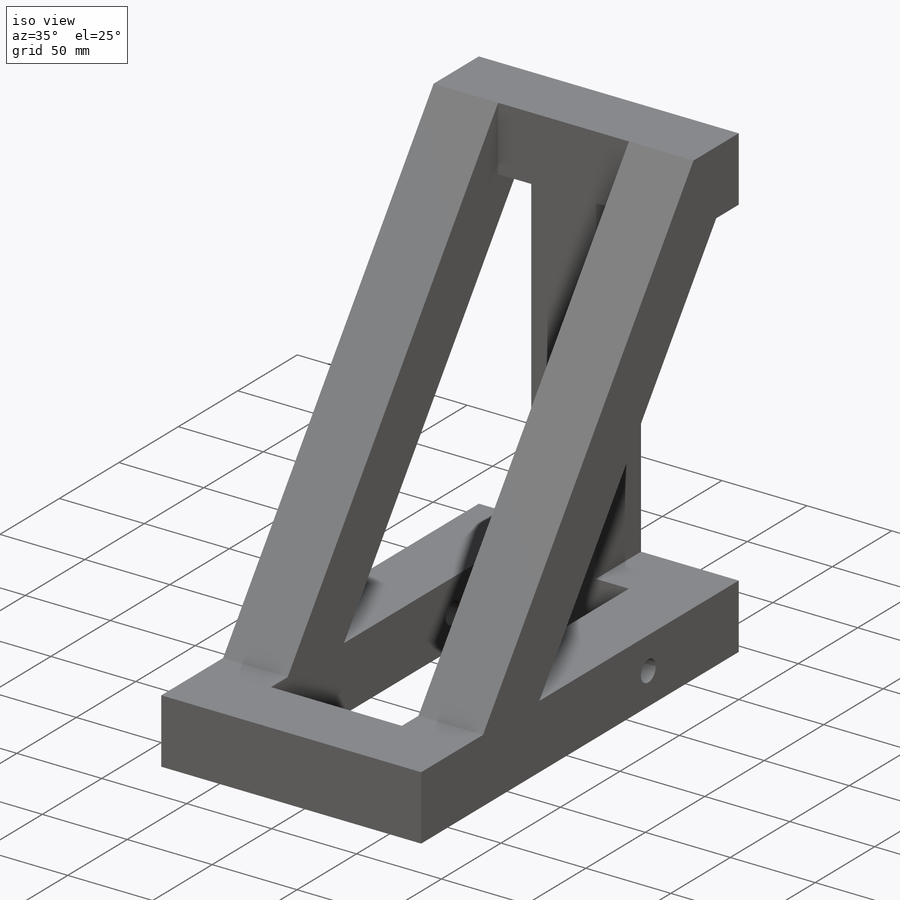
[diagram: iso view]
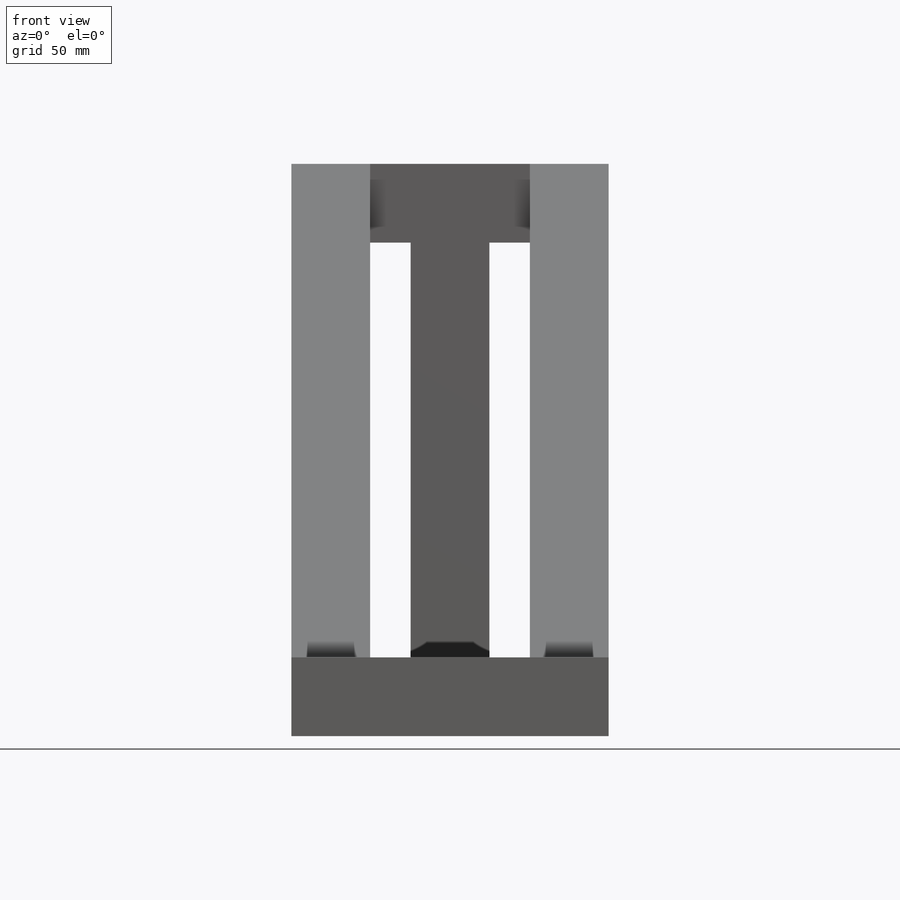
[diagram: front view]
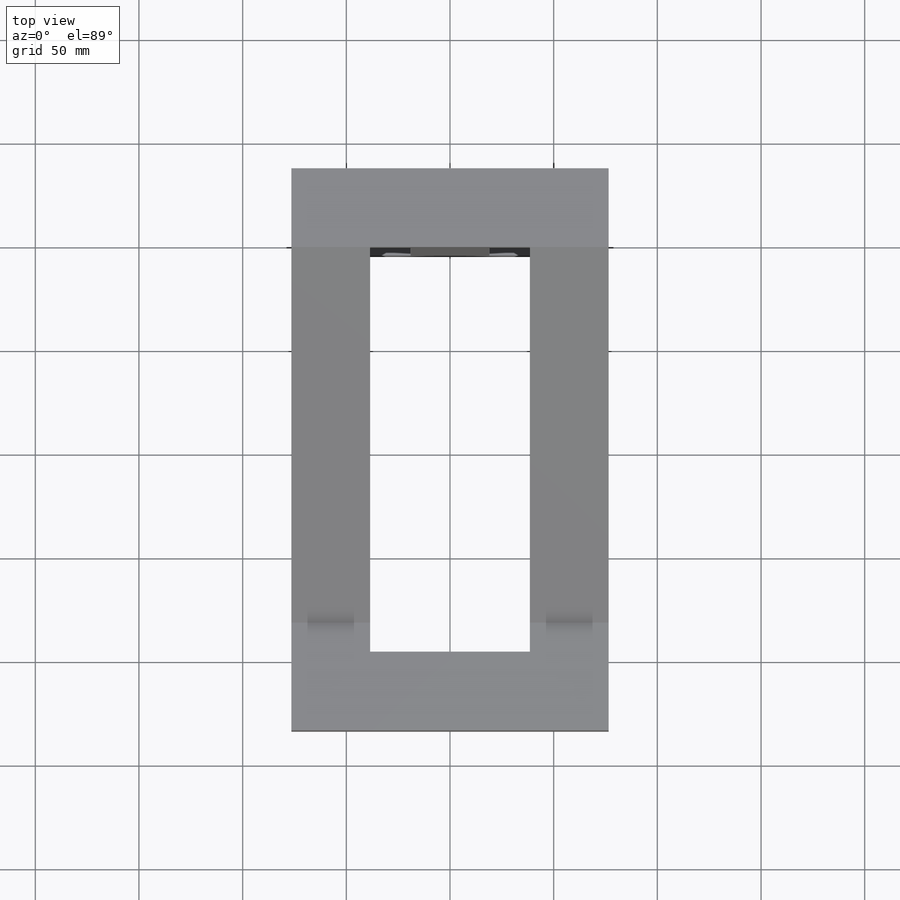
[diagram: top view]
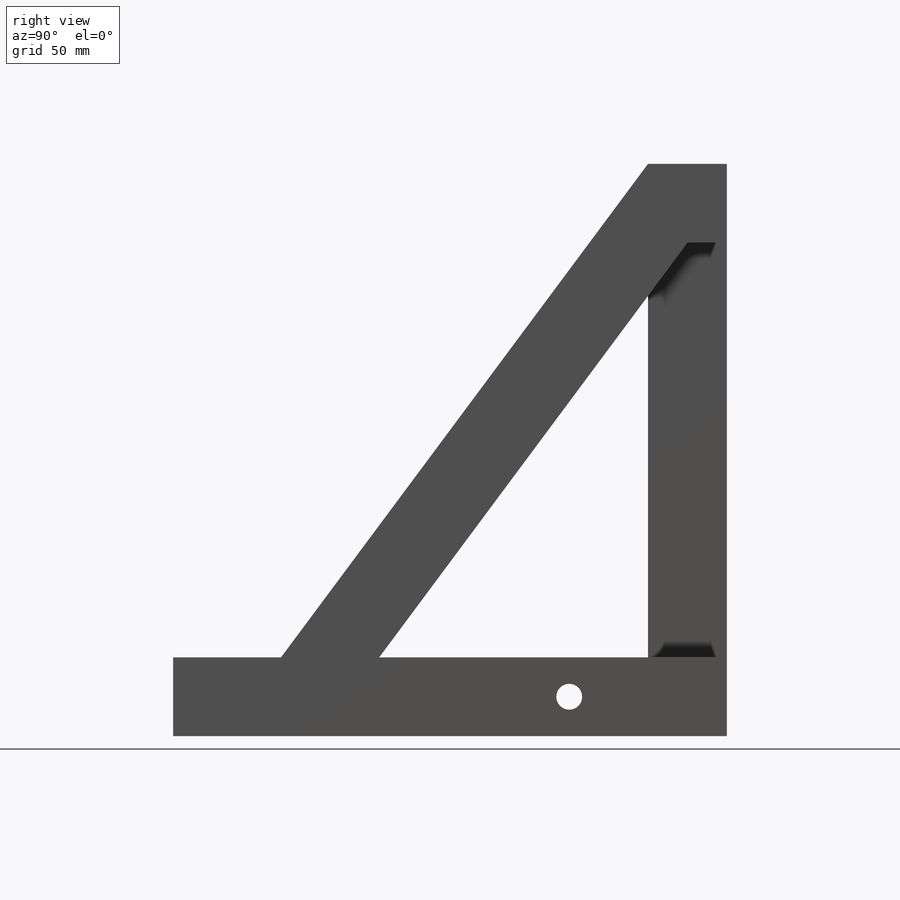
[diagram: right view]
SOLIDWORKS PART (.sldprt)
format: sldprt  version: not decoded by parser v0  size: 374,272 bytes
history: native  units: mm
features: sketch x5, extrude x4, material x1, mirror x1, cut_extrude x1 (+11 scaffold rows collapsed)
feature tree (23):
  scaffold x11  (default folders/planes/origin — collapsed)
  material  "Pine"
  sketch  "Sketch1"  dims[D1=77.0mm D2=38.5mm D3=191.0mm D4=95.5mm D5=38.0mm]
  extrude  "Boss-Extrude1"  Depth=38mm
  sketch  "Sketch2"  dims[D1=38.0mm D2=19.0mm]
  extrude  "Boss-Extrude2"  Depth=200mm
  sketch  "Sketch3"  dims[D1=38.0mm D2=38.0mm]
  extrude  "Boss-Extrude3"  Depth=76.5mm
  sketch  "Sketch6"  dims[D1=38.0mm D2=52.0mm]
  extrude  "Boss-Extrude4"  Depth=38mm
  mirror  "Mirror1"
  sketch  "Sketch7"  dims[D1=12.5mm D2=19.0mm D3=76.0mm]
  cut_extrude  "Cut-Extrude1"  [1 undecoded]
decode coverage: 9 of 11 modeling features carry decoded parameters
note: 1 parameter value undecoded
note: suppression state not decoded; provenance and decode notes live in map.json
